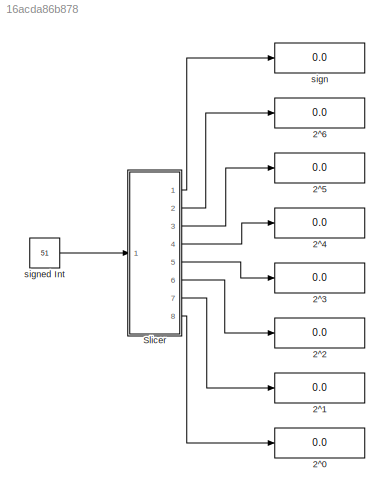
MODEL slx_16acda86b878
KIND model
CONFIG AbsTol = auto
CONFIG EnableMultiTasking = off
CONFIG FixedStep = auto
CONFIG MaxStep = auto
CONFIG MinStep = auto
CONFIG RelTol = 1e-3
CONFIG SampleTimeConstraint = Unconstrained
CONFIG Solver = VariableStepAuto
CONFIG SolverName = VariableStepAuto
CONFIG StartTime = 0.0
CONFIG StopTime = 10.0
BLOCK [Display] 2^0
  Decimation = 1
  Ports = [1]
BLOCK [Display] 2^1
  Decimation = 1
  Ports = [1]
BLOCK [Display] 2^2
  Decimation = 1
  Ports = [1]
BLOCK [Display] 2^3
  Decimation = 1
  Ports = [1]
BLOCK [Display] 2^4
  Decimation = 1
  Ports = [1]
BLOCK [Display] 2^5
  Decimation = 1
  Ports = [1]
BLOCK [Display] 2^6
  Decimation = 1
  Ports = [1]
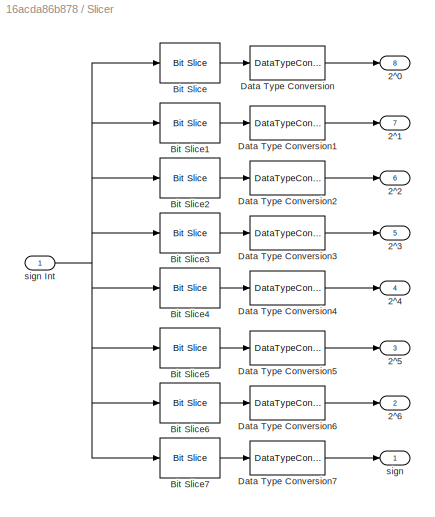
BLOCK [SubSystem] Slicer
  Ports = [1, 8]
  RequestExecContextInheritance = off
BLOCK [Outport] Slicer/2^0 
  IconDisplay = Port number
  Port = 8
BLOCK [Outport] Slicer/2^1
  IconDisplay = Port number
  Port = 7
BLOCK [Outport] Slicer/2^2
  IconDisplay = Port number
  Port = 6
BLOCK [Outport] Slicer/2^3
  IconDisplay = Port number
  Port = 5
BLOCK [Outport] Slicer/2^4
  IconDisplay = Port number
  Port = 4
BLOCK [Outport] Slicer/2^5
  IconDisplay = Port number
  Port = 3
BLOCK [Outport] Slicer/2^6
  IconDisplay = Port number
  Port = 2
BLOCK [Reference] Slicer/Bit Slice  REF=hdlsllib/Logic and Bit
Operations/Bit Slice
  Ports = [1, 1]
  SourceBlock = hdlsllib/Logic and Bit\nOperations/Bit Slice
  SourceProductBaseCode = HD
  SourceProductName = HDL Coder
  SourceType = Bit Slice
BLOCK [Reference] Slicer/Bit Slice1  REF=hdlsllib/Logic and Bit
Operations/Bit Slice
  Ports = [1, 1]
  SourceBlock = hdlsllib/Logic and Bit\nOperations/Bit Slice
  SourceProductBaseCode = HD
  SourceProductName = HDL Coder
  SourceType = Bit Slice
BLOCK [Reference] Slicer/Bit Slice2  REF=hdlsllib/Logic and Bit
Operations/Bit Slice
  Ports = [1, 1]
  SourceBlock = hdlsllib/Logic and Bit\nOperations/Bit Slice
  SourceProductBaseCode = HD
  SourceProductName = HDL Coder
  SourceType = Bit Slice
BLOCK [Reference] Slicer/Bit Slice3  REF=hdlsllib/Logic and Bit
Operations/Bit Slice
  Ports = [1, 1]
  SourceBlock = hdlsllib/Logic and Bit\nOperations/Bit Slice
  SourceProductBaseCode = HD
  SourceProductName = HDL Coder
  SourceType = Bit Slice
BLOCK [Reference] Slicer/Bit Slice4  REF=hdlsllib/Logic and Bit
Operations/Bit Slice
  Ports = [1, 1]
  SourceBlock = hdlsllib/Logic and Bit\nOperations/Bit Slice
  SourceProductBaseCode = HD
  SourceProductName = HDL Coder
  SourceType = Bit Slice
BLOCK [Reference] Slicer/Bit Slice5  REF=hdlsllib/Logic and Bit
Operations/Bit Slice
  Ports = [1, 1]
  SourceBlock = hdlsllib/Logic and Bit\nOperations/Bit Slice
  SourceProductBaseCode = HD
  SourceProductName = HDL Coder
  SourceType = Bit Slice
BLOCK [Reference] Slicer/Bit Slice6  REF=hdlsllib/Logic and Bit
Operations/Bit Slice
  Ports = [1, 1]
  SourceBlock = hdlsllib/Logic and Bit\nOperations/Bit Slice
  SourceProductBaseCode = HD
  SourceProductName = HDL Coder
  SourceType = Bit Slice
BLOCK [Reference] Slicer/Bit Slice7  REF=hdlsllib/Logic and Bit
Operations/Bit Slice
  Ports = [1, 1]
  SourceBlock = hdlsllib/Logic and Bit\nOperations/Bit Slice
  SourceProductBaseCode = HD
  SourceProductName = HDL Coder
  SourceType = Bit Slice
BLOCK [DataTypeConversion] Slicer/Data Type Conversion
  OutDataTypeStr = boolean
  RndMeth = Floor
  SaturateOnIntegerOverflow = off
BLOCK [DataTypeConversion] Slicer/Data Type Conversion1
  OutDataTypeStr = boolean
  RndMeth = Floor
  SaturateOnIntegerOverflow = off
BLOCK [DataTypeConversion] Slicer/Data Type Conversion2
  OutDataTypeStr = boolean
  RndMeth = Floor
  SaturateOnIntegerOverflow = off
BLOCK [DataTypeConversion] Slicer/Data Type Conversion3
  OutDataTypeStr = boolean
  RndMeth = Floor
  SaturateOnIntegerOverflow = off
BLOCK [DataTypeConversion] Slicer/Data Type Conversion4
  OutDataTypeStr = boolean
  RndMeth = Floor
  SaturateOnIntegerOverflow = off
BLOCK [DataTypeConversion] Slicer/Data Type Conversion5
  OutDataTypeStr = boolean
  RndMeth = Floor
  SaturateOnIntegerOverflow = off
BLOCK [DataTypeConversion] Slicer/Data Type Conversion6
  OutDataTypeStr = boolean
  RndMeth = Floor
  SaturateOnIntegerOverflow = off
BLOCK [DataTypeConversion] Slicer/Data Type Conversion7
  OutDataTypeStr = boolean
  RndMeth = Floor
  SaturateOnIntegerOverflow = off
BLOCK [Outport] Slicer/sign
  IconDisplay = Port number
BLOCK [Inport] Slicer/sign Int
  IconDisplay = Port number
  OutDataTypeStr = int8
  SampleTime = 1
BLOCK [Display] sign
  Decimation = 1
  Ports = [1]
BLOCK [Constant] signed Int
  OutDataTypeStr = int8
  Value = 51
LINE Slicer/Bit Slice1:1 -> Slicer/Data Type Conversion1:1
LINE Slicer/Bit Slice2:1 -> Slicer/Data Type Conversion2:1
LINE Slicer/Bit Slice3:1 -> Slicer/Data Type Conversion3:1
LINE Slicer/Bit Slice4:1 -> Slicer/Data Type Conversion4:1
LINE Slicer/Bit Slice5:1 -> Slicer/Data Type Conversion5:1
LINE Slicer/Bit Slice6:1 -> Slicer/Data Type Conversion6:1
LINE Slicer/Bit Slice7:1 -> Slicer/Data Type Conversion7:1
LINE Slicer/Bit Slice:1 -> Slicer/Data Type Conversion:1
LINE Slicer/Data Type Conversion1:1 -> Slicer/2^1:1
LINE Slicer/Data Type Conversion2:1 -> Slicer/2^2:1
LINE Slicer/Data Type Conversion3:1 -> Slicer/2^3:1
LINE Slicer/Data Type Conversion4:1 -> Slicer/2^4:1
LINE Slicer/Data Type Conversion5:1 -> Slicer/2^5:1
LINE Slicer/Data Type Conversion6:1 -> Slicer/2^6:1
LINE Slicer/Data Type Conversion7:1 -> Slicer/sign:1
LINE Slicer/Data Type Conversion:1 -> Slicer/2^0 :1
NET Slicer/sign Int:1 -> Slicer/Bit Slice1:1, Slicer/Bit Slice2:1, Slicer/Bit Slice3:1, Slicer/Bit Slice4:1, Slicer/Bit Slice5:1, Slicer/Bit Slice6:1, Slicer/Bit Slice7:1, Slicer/Bit Slice:1
LINE Slicer:1 -> sign:1
LINE Slicer:2 -> 2^6:1
LINE Slicer:3 -> 2^5:1
LINE Slicer:4 -> 2^4:1
LINE Slicer:5 -> 2^3:1
LINE Slicer:6 -> 2^2:1
LINE Slicer:7 -> 2^1:1
LINE Slicer:8 -> 2^0:1
LINE signed Int:1 -> Slicer:1
note: NET lines group one-source signal fan-out (src -> all destinations, sorted); 1:1 wires keep LINE
